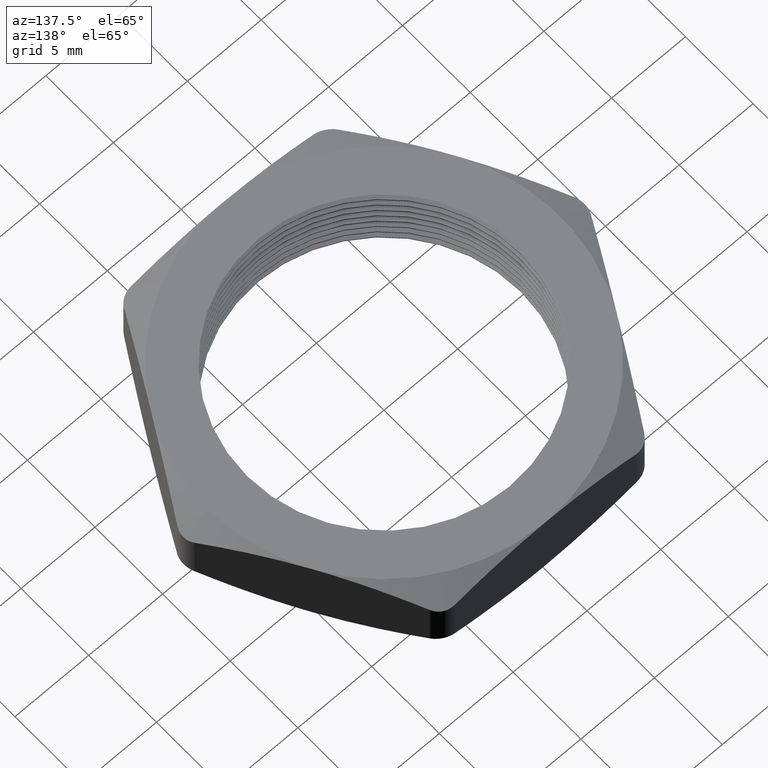
[diagram: clean part render]
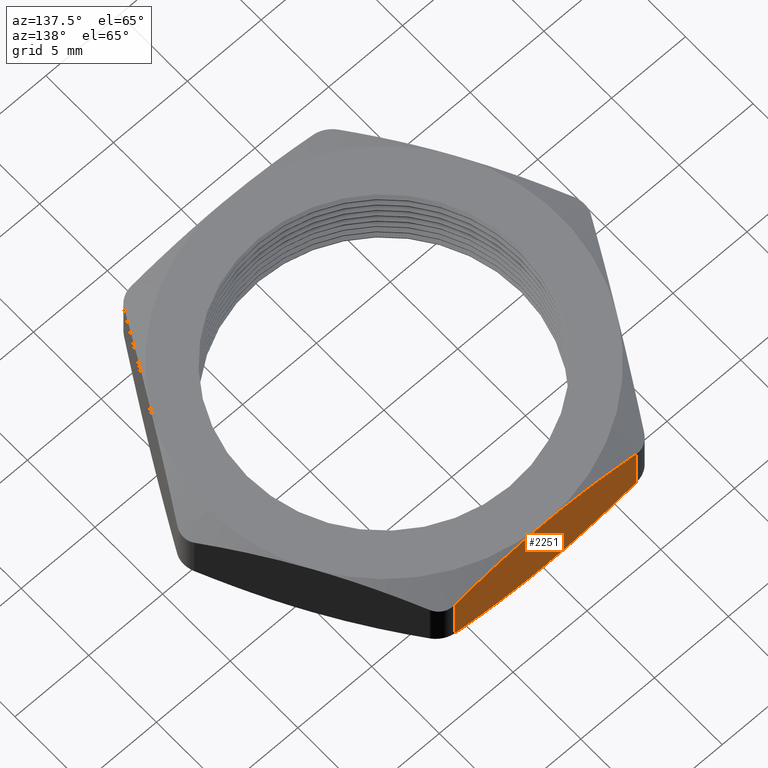
[diagram: same view with one face highlighted and labeled with its STEP entity id]
A machine part, auxiliary view. The second image highlights one B-rep face of the part: STEP entity #2251.
In plain terms, the highlighted planar face has unit normal (0, -1, 0).
Its self-contained STEP definition (entity closure, byte-faithful):
#86 = ORIENTED_EDGE ( 'NONE', *, *, #87, .F. ) ;
#87 = EDGE_CURVE ( 'NONE', #198, #2194, #422, .T. ) ;
#195 = ORIENTED_EDGE ( 'NONE', *, *, #196, .F. ) ;
#196 = EDGE_CURVE ( 'NONE', #2250, #204, #612, .T. ) ;
#198 = VERTEX_POINT ( 'NONE', #532 ) ;
#199 = ORIENTED_EDGE ( 'NONE', *, *, #200, .F. ) ;
#200 = EDGE_CURVE ( 'NONE', #201, #198, #437, .T. ) ;
#201 = VERTEX_POINT ( 'NONE', #766 ) ;
#202 = ORIENTED_EDGE ( 'NONE', *, *, #203, .T. ) ;
#203 = EDGE_CURVE ( 'NONE', #201, #204, #715, .T. ) ;
#204 = VERTEX_POINT ( 'NONE', #716 ) ;
#348 = CARTESIAN_POINT ( 'NONE',  ( 0.1633607645370579500, 0.4700000000000000800, 0.1849673474507639900 ) ) ;
#388 = CARTESIAN_POINT ( 'NONE',  ( -0.2424871130596452100, 0.4700000000000000300, 0.1660132874683276100 ) ) ;
#389 = CARTESIAN_POINT ( 'NONE',  ( -0.2226108414358443900, 0.4700000000000000300, 0.1712748741016428000 ) ) ;
#390 = CARTESIAN_POINT ( 'NONE',  ( -0.2025343369549048300, 0.4700000000000000800, 0.1760753458893614400 ) ) ;
#391 = CARTESIAN_POINT ( 'NONE',  ( -0.1623632716904848700, 0.4700000000000000300, 0.1844683336805584000 ) ) ;
#392 = CARTESIAN_POINT ( 'NONE',  ( -0.1422226875498240100, 0.4700000000000000800, 0.1880733215581377200 ) ) ;
#416 = CARTESIAN_POINT ( 'NONE',  ( -0.08161277580444166500, 0.4699999999999999200, 0.1968665899591069400 ) ) ;
#417 = CARTESIAN_POINT ( 'NONE',  ( -0.04095220125330420500, 0.4700000000000000800, 0.2000000000000000100 ) ) ;
#418 = CARTESIAN_POINT ( 'NONE',  ( -5.914624404477002600E-017, 0.4700000000000000300, 0.2000000000000000100 ) ) ;
#422 = B_SPLINE_CURVE_WITH_KNOTS ( 'NONE', 3,
 ( #418, #417, #416, #392, #391, #390, #389, #388 ),
 .UNSPECIFIED., .F., .F.,
 ( 4, 2, 2, 4 ),
 ( 0.04065498061189699200, 0.04376542963585040900, 0.04532065414782711400, 0.04687587865980382500 ),
 .UNSPECIFIED. ) ;
#437 = B_SPLINE_CURVE_WITH_KNOTS ( 'NONE', 3,
 ( #524, #523, #348, #774, #756, #729, #728, #755 ),
 .UNSPECIFIED., .F., .F.,
 ( 4, 2, 2, 4 ),
 ( 0.03443534808285064800, 0.03754516434737381600, 0.03910007247963540700, 0.04065498061189699200 ),
 .UNSPECIFIED. ) ;
#523 = CARTESIAN_POINT ( 'NONE',  ( 0.2031635114994523600, 0.4700000000000002500, 0.1764229125861069600 ) ) ;
#524 = CARTESIAN_POINT ( 'NONE',  ( 0.2424871130596431000, 0.4700000000000000800, 0.1660132874683279700 ) ) ;
#532 = CARTESIAN_POINT ( 'NONE',  ( -5.914624404477002600E-017, 0.4700000000000000300, 0.2000000000000000100 ) ) ;
#533 = CARTESIAN_POINT ( 'NONE',  ( 0.2424871130596430700, 0.4700000000000000800, 0.03398671253167202800 ) ) ;
#534 = CARTESIAN_POINT ( 'NONE',  ( 0.2031635114994524100, 0.4700000000000002000, 0.02357708741389311100 ) ) ;
#535 = CARTESIAN_POINT ( 'NONE',  ( 0.1633607645370578300, 0.4700000000000002000, 0.01503265254923605600 ) ) ;
#536 = CARTESIAN_POINT ( 'NONE',  ( 0.1026421087268614800, 0.4700000000000000800, 0.006165326424502344400 ) ) ;
#537 = CARTESIAN_POINT ( 'NONE',  ( 0.08223301455626139100, 0.4700000000000000800, 0.003869535514950000500 ) ) ;
#538 = CARTESIAN_POINT ( 'NONE',  ( 0.04102984412290256600, 0.4700000000000002000, 0.0007765903155824572600 ) ) ;
#539 = CARTESIAN_POINT ( 'NONE',  ( 0.02047193516833199800, 0.4700000000000000800, -1.938616089253937200E-017 ) ) ;
#540 = CARTESIAN_POINT ( 'NONE',  ( -5.914624404477003900E-017, 0.4700000000000000300, 0.0000000000000000000 ) ) ;
#612 = B_SPLINE_CURVE_WITH_KNOTS ( 'NONE', 3,
 ( #540, #539, #538, #537, #536, #535, #534, #533 ),
 .UNSPECIFIED., .F., .F.,
 ( 4, 2, 2, 4 ),
 ( 0.01990055450225522100, 0.02145579870034956500, 0.02301104289844391200, 0.02612153129463259900 ),
 .UNSPECIFIED. ) ;
#715 = LINE ( 'NONE', #739, #717 ) ;
#716 = CARTESIAN_POINT ( 'NONE',  ( 0.2424871130596430700, 0.4700000000000000800, 0.03398671253167202800 ) ) ;
#717 = VECTOR ( 'NONE', #738, 39.37007874015748100 ) ;
#728 = CARTESIAN_POINT ( 'NONE',  ( 0.02047193516833212600, 0.4700000000000000800, 0.2000000000000000900 ) ) ;
#729 = CARTESIAN_POINT ( 'NONE',  ( 0.04102984412290293400, 0.4700000000000002000, 0.1992234096844175400 ) ) ;
#738 = DIRECTION ( 'NONE',  ( 0.0000000000000000000, 0.0000000000000000000, -1.000000000000000000 ) ) ;
#739 = CARTESIAN_POINT ( 'NONE',  ( 0.2424871130596430400, 0.4700000000000000800, 0.2000000000000000100 ) ) ;
#755 = CARTESIAN_POINT ( 'NONE',  ( -5.914624404477002600E-017, 0.4700000000000000300, 0.2000000000000000100 ) ) ;
#756 = CARTESIAN_POINT ( 'NONE',  ( 0.08223301455626176600, 0.4700000000000000800, 0.1961304644850500000 ) ) ;
#766 = CARTESIAN_POINT ( 'NONE',  ( 0.2424871130596431000, 0.4700000000000000800, 0.1660132874683279700 ) ) ;
#774 = CARTESIAN_POINT ( 'NONE',  ( 0.1026421087268616200, 0.4700000000000000300, 0.1938346735754977500 ) ) ;
#1036 = CARTESIAN_POINT ( 'NONE',  ( -0.2025343369549051100, 0.4700000000000000300, 0.02392465411063864800 ) ) ;
#1081 = B_SPLINE_CURVE_WITH_KNOTS ( 'NONE', 3,
 ( #1652, #1651, #1036, #1298, #1497, #1500, #1499, #1496 ),
 .UNSPECIFIED., .F., .F.,
 ( 4, 2, 2, 4 ),
 ( 0.01367831191749788400, 0.01523387256368721700, 0.01678943320987655300, 0.01990055450225522100 ),
 .UNSPECIFIED. ) ;
#1298 = CARTESIAN_POINT ( 'NONE',  ( -0.1623632716904851400, 0.4700000000000000800, 0.01553166631944164300 ) ) ;
#1486 = CARTESIAN_POINT ( 'NONE',  ( -0.2424871130596452100, 0.4700000000000000300, 0.1660132874683276100 ) ) ;
#1487 = DIRECTION ( 'NONE',  ( 0.0000000000000000000, 0.0000000000000000000, 1.000000000000000000 ) ) ;
#1488 = VECTOR ( 'NONE', #1487, 39.37007874015748100 ) ;
#1489 = CARTESIAN_POINT ( 'NONE',  ( -0.2424871130596429600, 0.4700000000000000300, 0.2000000000000000100 ) ) ;
#1490 = LINE ( 'NONE', #1489, #1488 ) ;
#1496 = CARTESIAN_POINT ( 'NONE',  ( -5.914624404477003900E-017, 0.4700000000000000300, 0.0000000000000000000 ) ) ;
#1497 = CARTESIAN_POINT ( 'NONE',  ( -0.1422226875498240900, 0.4699999999999999700, 0.01192667844186235900 ) ) ;
#1499 = CARTESIAN_POINT ( 'NONE',  ( -0.04095220125330434300, 0.4700000000000000300, -2.054221635860822900E-017 ) ) ;
#1500 = CARTESIAN_POINT ( 'NONE',  ( -0.08161277580444184500, 0.4700000000000000800, 0.003133410040893084200 ) ) ;
#1600 = CARTESIAN_POINT ( 'NONE',  ( -0.2424871130596453500, 0.4700000000000000300, 0.03398671253167250000 ) ) ;
#1607 = DIRECTION ( 'NONE',  ( 1.000000000000000000, 1.258430724356809000E-016, 0.0000000000000000000 ) ) ;
#1608 = DIRECTION ( 'NONE',  ( 1.258430724356809000E-016, -1.000000000000000000, 0.0000000000000000000 ) ) ;
#1609 = CARTESIAN_POINT ( 'NONE',  ( 0.2713546265191242900, 0.4700000000000000800, 0.2000000000000000100 ) ) ;
#1610 = AXIS2_PLACEMENT_3D ( 'NONE', #1609, #1608, #1607 ) ;
#1611 = PLANE ( 'NONE',  #1610 ) ;
#1612 = FACE_OUTER_BOUND ( 'NONE', #2299, .T. ) ;
#1651 = CARTESIAN_POINT ( 'NONE',  ( -0.2226108414358444800, 0.4699999999999999700, 0.02872512589835720500 ) ) ;
#1652 = CARTESIAN_POINT ( 'NONE',  ( -0.2424871130596453500, 0.4700000000000000300, 0.03398671253167250000 ) ) ;
#1750 = CARTESIAN_POINT ( 'NONE',  ( -5.914624404477003900E-017, 0.4700000000000000300, 0.0000000000000000000 ) ) ;
#2193 = EDGE_CURVE ( 'NONE', #2256, #2194, #1490, .T. ) ;
#2194 = VERTEX_POINT ( 'NONE', #1486 ) ;
#2250 = VERTEX_POINT ( 'NONE', #1750 ) ;
#2251 = ADVANCED_FACE ( 'NONE', ( #1612 ), #1611, .F. ) ;
#2256 = VERTEX_POINT ( 'NONE', #1600 ) ;
#2257 = ORIENTED_EDGE ( 'NONE', *, *, #2193, .T. ) ;
#2299 = EDGE_LOOP ( 'NONE', ( #2300, #2257, #86, #199, #202, #195 ) ) ;
#2300 = ORIENTED_EDGE ( 'NONE', *, *, #2305, .F. ) ;
#2305 = EDGE_CURVE ( 'NONE', #2256, #2250, #1081, .T. ) ;